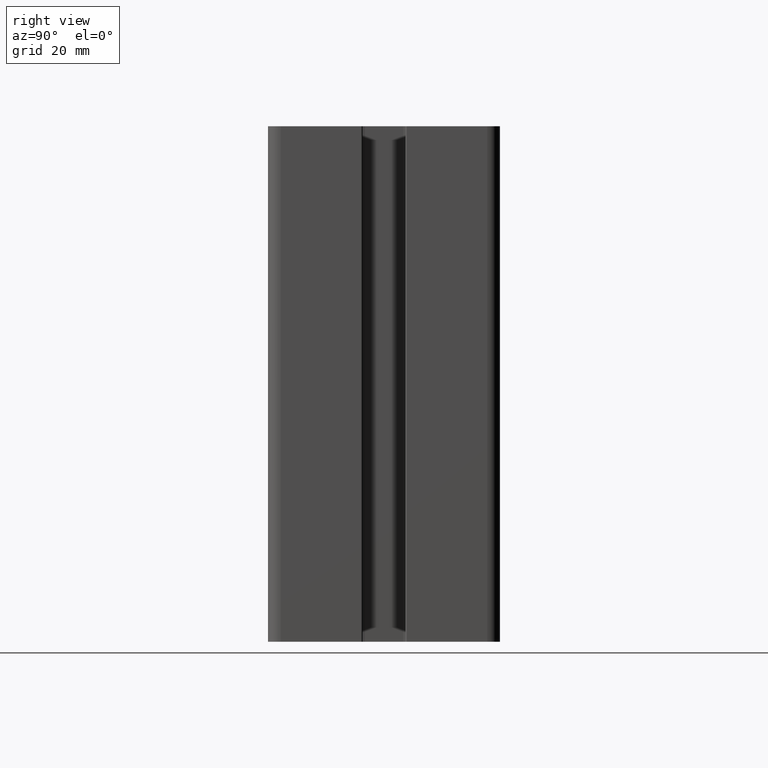
[diagram: clean part render]
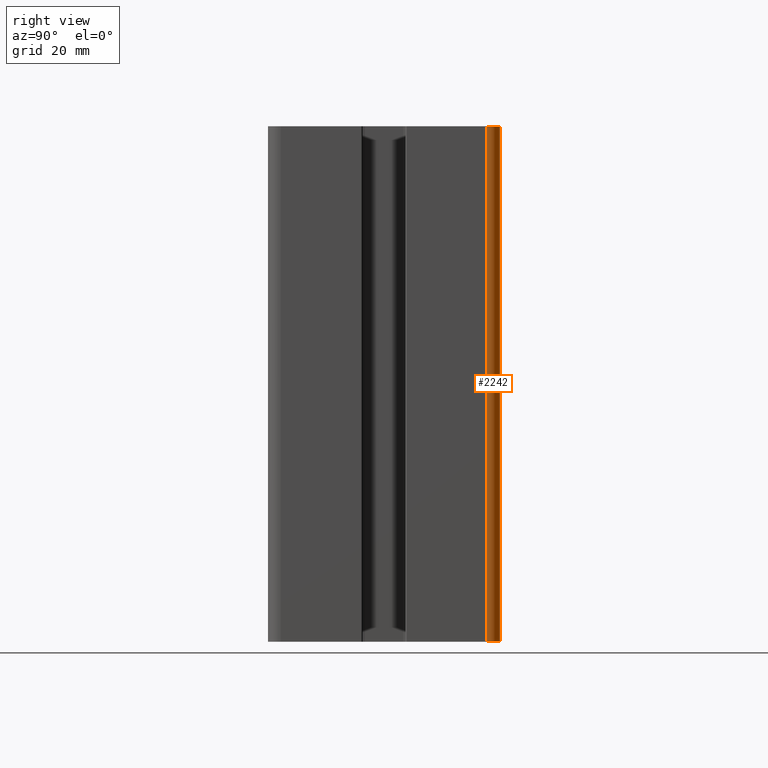
[diagram: same view with one face highlighted and labeled with its STEP entity id]
A machine part, right view. The second image highlights one B-rep face of the part: STEP entity #2242.
In plain terms, the highlighted cylindrical surface (edge-blend (fillet) strip) has radius 2.5 mm, axis along (0, 0, 1).
Its self-contained STEP definition (entity closure, byte-faithful):
#197=FACE_OUTER_BOUND('',#317,.T.);
#317=EDGE_LOOP('',(#1962,#1963,#1964,#1965));
#532=LINE('',#3740,#754);
#545=LINE('',#3779,#767);
#754=VECTOR('',#3073,100.);
#767=VECTOR('',#3114,100.);
#869=CIRCLE('',#2449,2.5);
#875=CIRCLE('',#2462,2.5);
#1082=VERTEX_POINT('',#3737);
#1083=VERTEX_POINT('',#3739);
#1085=VERTEX_POINT('',#3746);
#1095=VERTEX_POINT('',#3778);
#1400=EDGE_CURVE('',#1082,#1083,#532,.T.);
#1404=EDGE_CURVE('',#1085,#1083,#869,.T.);
#1420=EDGE_CURVE('',#1095,#1085,#545,.T.);
#1422=EDGE_CURVE('',#1095,#1082,#875,.T.);
#1962=ORIENTED_EDGE('',*,*,#1404,.T.);
#1963=ORIENTED_EDGE('',*,*,#1400,.F.);
#1964=ORIENTED_EDGE('',*,*,#1422,.F.);
#1965=ORIENTED_EDGE('',*,*,#1420,.T.);
#2132=CYLINDRICAL_SURFACE('',#2461,2.5);
#2242=ADVANCED_FACE('',(#197),#2132,.T.);
#2449=AXIS2_PLACEMENT_3D('',#3747,#3080,#3081);
#2461=AXIS2_PLACEMENT_3D('',#3781,#3116,#3117);
#2462=AXIS2_PLACEMENT_3D('',#3782,#3118,#3119);
#3073=DIRECTION('',(0.,0.,1.));
#3080=DIRECTION('center_axis',(0.,0.,-1.));
#3081=DIRECTION('ref_axis',(1.,0.,0.));
#3114=DIRECTION('',(0.,0.,1.));
#3116=DIRECTION('center_axis',(0.,0.,1.));
#3117=DIRECTION('ref_axis',(1.,0.,0.));
#3118=DIRECTION('center_axis',(0.,0.,-1.));
#3119=DIRECTION('ref_axis',(1.,0.,0.));
#3737=CARTESIAN_POINT('',(45.,20.,0.));
#3739=CARTESIAN_POINT('',(45.,20.,100.));
#3740=CARTESIAN_POINT('',(45.,20.,0.));
#3746=CARTESIAN_POINT('',(42.5,22.5,100.));
#3747=CARTESIAN_POINT('Origin',(42.5,20.,100.));
#3778=CARTESIAN_POINT('',(42.5,22.5,0.));
#3779=CARTESIAN_POINT('',(42.5,22.5,0.));
#3781=CARTESIAN_POINT('Origin',(42.5,20.,0.));
#3782=CARTESIAN_POINT('Origin',(42.5,20.,0.));